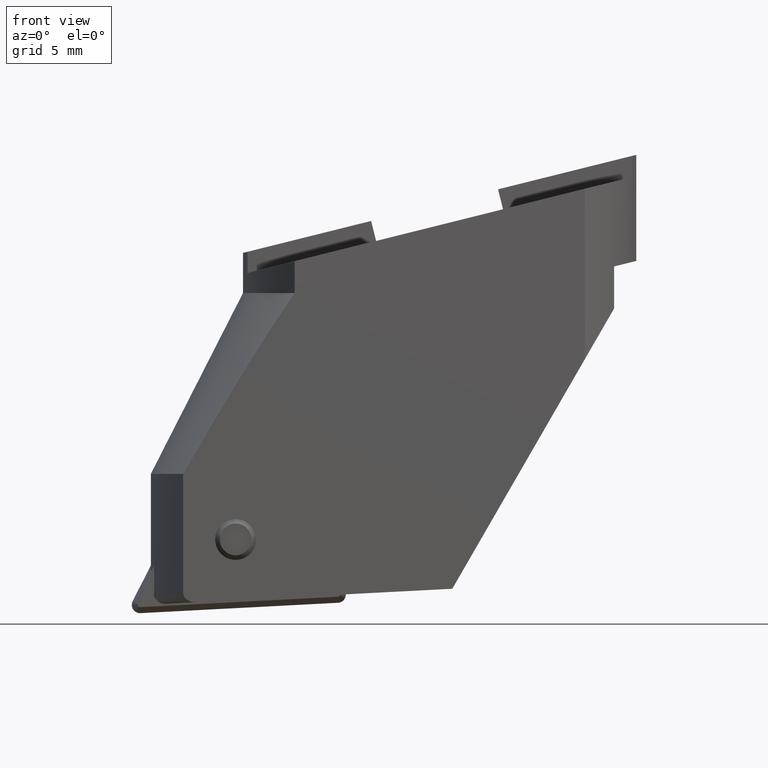
[diagram: clean part render]
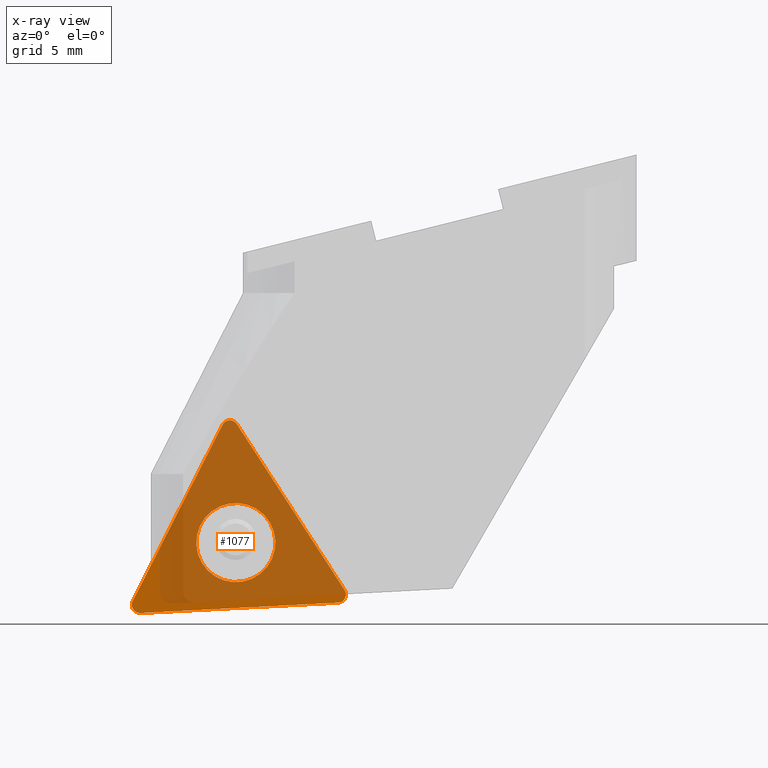
[diagram: x-ray — body ghosted, one internal face saturated and labeled with its STEP entity id]
A machine part, front view, then the same camera in x-ray: the body is ghosted and one INTERNAL B-rep face — a face not visible from any outside direction — is saturated and labeled: STEP entity #1077.
In plain terms, the highlighted planar face has unit normal (0, -1, -0).
Its self-contained STEP definition (entity closure, byte-faithful):
#953=VERTEX_POINT('NONE',#2465);
#957=VERTEX_POINT('NONE',#2469);
#1009=EDGE_CURVE('NONE',#1321,#2055,#2525,.T.);
#1077=ADVANCED_FACE('NONE',(#2598,#2599),#2600,.F.);
#1195=VERTEX_POINT('NONE',#2730);
#1321=VERTEX_POINT('NONE',#2874);
#1325=EDGE_CURVE('NONE',#2119,#1475,#2878,.T.);
#1337=EDGE_CURVE('NONE',#2105,#1321,#2891,.T.);
#1371=VERTEX_POINT('NONE',#2929);
#1451=VERTEX_POINT('NONE',#3021);
#1475=VERTEX_POINT('NONE',#3049);
#1483=EDGE_CURVE('NONE',#953,#1451,#3057,.T.);
#1487=EDGE_CURVE('NONE',#957,#1371,#3061,.T.);
#1607=EDGE_CURVE('NONE',#1475,#2119,#3190,.T.);
#1677=EDGE_CURVE('NONE',#1451,#2105,#3262,.T.);
#1867=EDGE_CURVE('NONE',#1195,#953,#3467,.T.);
#1883=EDGE_CURVE('NONE',#2055,#957,#3486,.T.);
#1969=EDGE_CURVE('NONE',#1371,#1195,#3582,.T.);
#2055=VERTEX_POINT('',#3677);
#2105=VERTEX_POINT('NONE',#3732);
#2119=VERTEX_POINT('NONE',#3747);
#2465=CARTESIAN_POINT('',(-4.61944556357645,0.280000000000009,-21.1417916595486));
#2469=CARTESIAN_POINT('',(-14.9110242617725,0.280000000000009,-21.6811504444375));
#2525=CIRCLE('',#4250,0.4);
#2598=FACE_OUTER_BOUND('',#4354,.T.);
#2599=FACE_BOUND('',#4355,.T.);
#2600=PLANE('',#4356);
#2730=CARTESIAN_POINT('',(-9.85499632997007,0.27999999999998,-13.0797504681061));
#2874=CARTESIAN_POINT('',(-14.5336872696,0.280000000000011,-22.2621984582351));
#2878=CIRCLE('',#4715,1.92216700135473);
#2891=LINE('',#4734,#4735);
#2929=CARTESIAN_POINT('',(-10.5468671668236,0.27999999999998,-13.1160098822163));
#3021=CARTESIAN_POINT('',(-4.5554619768528,0.28000000000001,-21.3387128910574));
#3049=CARTESIAN_POINT('',(-11.8195327382835,0.28,-18.9405984480745));
#3057=CIRCLE('',#5354,0.4);
#3061=LINE('',#5359,#5360);
#3190=CIRCLE('',#5532,1.92216700135473);
#3262=CIRCLE('',#5633,0.4);
#3467=LINE('',#5921,#5922);
#3486=CIRCLE('',#5945,0.4);
#3582=CIRCLE('',#6084,0.4);
#3677=CARTESIAN_POINT('',(-14.954073465999,0.28000000000001,-21.8836810268305));
#3732=CARTESIAN_POINT('',(-4.93397940825745,0.280000000000011,-21.7590990874564));
#3747=CARTESIAN_POINT('',(-7.98046726171653,0.28,-18.7394015519255));
#4250=AXIS2_PLACEMENT_3D('',#6827,#6828,#6829);
#4354=EDGE_LOOP('',(#6903,#6904,#6905,#6906,#6907,#6908,#6909,#6910));
#4355=EDGE_LOOP('',(#6911,#6912));
#4356=AXIS2_PLACEMENT_3D('',#6913,#6914,#6915);
#4715=AXIS2_PLACEMENT_3D('',#7284,#7285,#7286);
#4734=CARTESIAN_POINT('',(-4.93397940825745,0.280000000000011,-21.7590990874564));
#4735=VECTOR('',#7300,1000.0);
#5354=AXIS2_PLACEMENT_3D('',#7515,#7516,#7517);
#5359=CARTESIAN_POINT('',(-10.5468671668236,0.27999999999998,-13.1160098822163));
#5360=VECTOR('',#7518,1000.0);
#5532=AXIS2_PLACEMENT_3D('',#7652,#7653,#7654);
#5633=AXIS2_PLACEMENT_3D('',#7700,#7701,#7702);
#5921=CARTESIAN_POINT('',(-4.61944556357645,0.280000000000009,-21.1417916595486));
#5922=VECTOR('',#7933,1000.0);
#5945=AXIS2_PLACEMENT_3D('',#7971,#7972,#7973);
#6084=AXIS2_PLACEMENT_3D('',#8109,#8110,#8111);
#6827=CARTESIAN_POINT('',(-14.5546216520971,0.28000000000001,-21.8627466443333));
#6828=DIRECTION('',(-1.82730120409917E-016,1.0,3.486698404508E-015));
#6829=DIRECTION('',(0.998629534754575,3.08148791101958E-032,0.0523359562429239));
#6903=ORIENTED_EDGE('',*,*,#1483,.T.);
#6904=ORIENTED_EDGE('',*,*,#1677,.T.);
#6905=ORIENTED_EDGE('',*,*,#1337,.T.);
#6906=ORIENTED_EDGE('',*,*,#1009,.T.);
#6907=ORIENTED_EDGE('',*,*,#1883,.T.);
#6908=ORIENTED_EDGE('',*,*,#1487,.T.);
#6909=ORIENTED_EDGE('',*,*,#1969,.T.);
#6910=ORIENTED_EDGE('',*,*,#1867,.T.);
#6911=ORIENTED_EDGE('',*,*,#1607,.T.);
#6912=ORIENTED_EDGE('',*,*,#1325,.T.);
#6913=CARTESIAN_POINT('',(-4.95491379075463,0.28000000000001,-21.3596472735546));
#6914=DIRECTION('',(1.82730120409923E-016,-1.0,-3.486698404508E-015));
#6915=DIRECTION('',(-1.22464679914735E-016,3.486698404508E-015,-1.0));
#7284=CARTESIAN_POINT('',(-9.90000000000001,0.28,-18.84));
#7285=DIRECTION('',(1.82730120409925E-016,-1.0,-3.486698404508E-015));
#7286=DIRECTION('',(0.998629534754575,2.56501160105049E-032,0.0523359562429261));
#7300=DIRECTION('',(-0.998629534754575,1.57516709448725E-031,-0.0523359562429255));
#7515=CARTESIAN_POINT('',(-4.95491379075463,0.28000000000001,-21.3596472735546));
#7516=DIRECTION('',(-1.82730120409917E-016,1.0,3.486698404508E-015));
#7517=DIRECTION('',(0.998629534754575,3.08148791101958E-032,0.0523359562429239));
#7518=DIRECTION('',(0.45399049973956,-3.02371328761141E-015,0.891006524188361));
#7652=CARTESIAN_POINT('',(-9.90000000000001,0.28,-18.84));
#7653=DIRECTION('',(1.82730120409925E-016,-1.0,-3.486698404508E-015));
#7654=DIRECTION('',(0.998629534754575,2.56501160105049E-032,0.0523359562429261));
#7700=CARTESIAN_POINT('',(-4.95491379075463,0.28000000000001,-21.3596472735546));
#7701=DIRECTION('',(-1.82730120409917E-016,1.0,3.486698404508E-015));
#7702=DIRECTION('',(0.998629534754575,3.08148791101958E-032,0.0523359562429239));
#7933=DIRECTION('',(0.54463903501501,3.02371328761141E-015,-0.838670567945435));
#7971=CARTESIAN_POINT('',(-14.5546216520971,0.28000000000001,-21.8627466443333));
#7972=DIRECTION('',(-1.82730120409917E-016,1.0,3.486698404508E-015));
#7973=DIRECTION('',(0.998629534754575,3.08148791101958E-032,0.0523359562429239));
#8109=CARTESIAN_POINT('',(-10.1904645571482,0.279999999999981,-13.2976060821121));
#8110=DIRECTION('',(-1.82730120409917E-016,1.0,3.486698404508E-015));
#8111=DIRECTION('',(0.998629534754575,3.08148791101958E-032,0.0523359562429239));